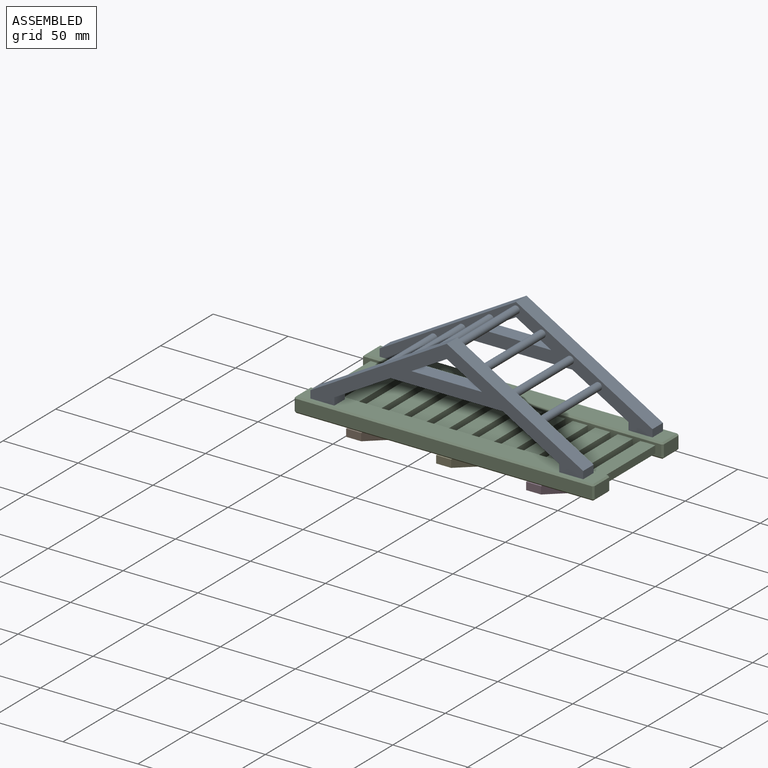
[diagram: assembled view]
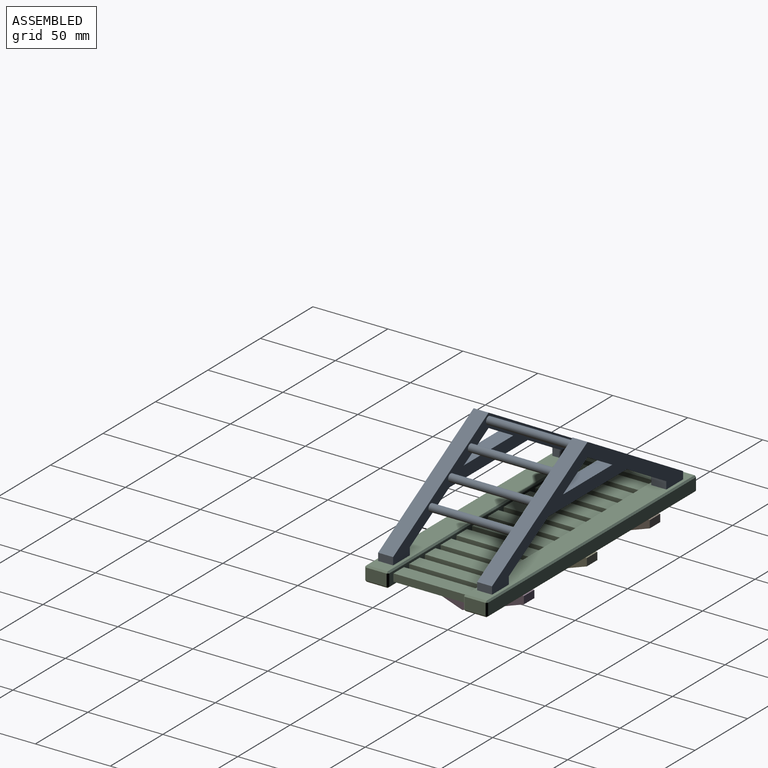
[diagram: assembled view, second angle]
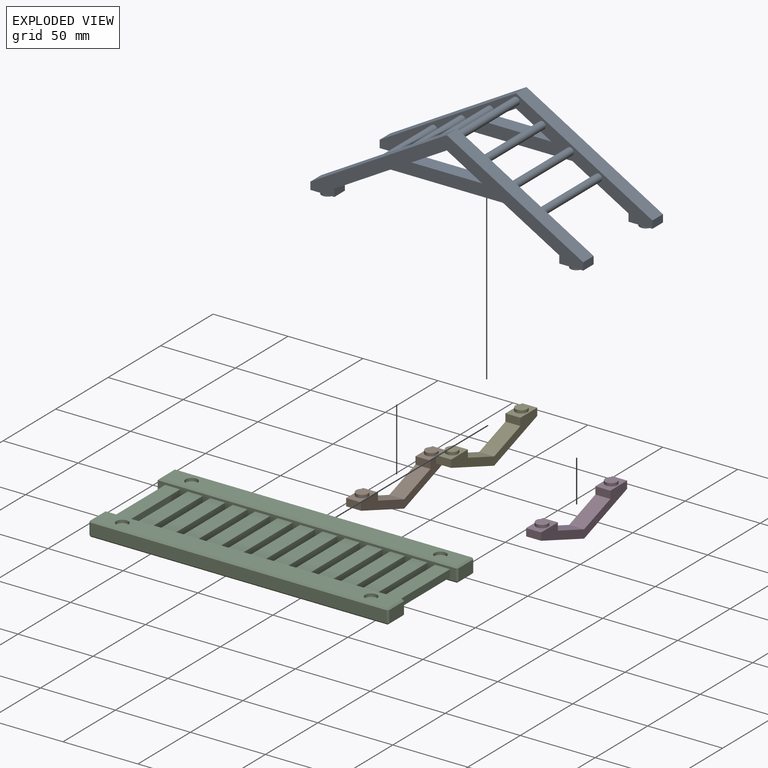
[diagram: exploded view]
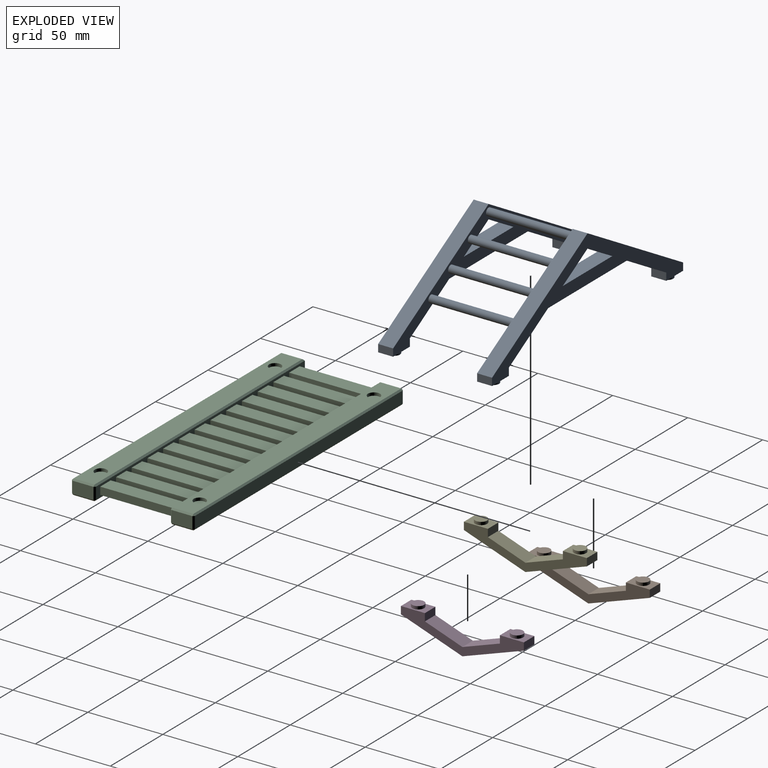
[diagram: exploded view, second angle]
ASSEMBLY  parts=5 mates=4
PART A: 47 faces, bbox 182x59.3x76 mm
  f0: plane 37.5x21.57mm, normal (0.5,-0.87,0), area 432.6mm2, adj f1,f13,f14,f15
  f1: plane 75x10mm, normal (0,-1,0), area 750mm2, adj f0,f2,f14,f15
  f2: plane 37.5x21.57mm, normal (-0.5,-0.87,0), area 432.6mm2, adj f1,f3,f14,f15
  f3: plane 10x5mm, normal (-1,0,0), area 50mm2, adj f2,f4,f14,f15
  f4: plane 16x10mm, normal (0,-1,0), area 109.7mm2, adj f3,f5,f14,f15,f18
  f5: plane 10x5mm, normal (1,0,0), area 50mm2, adj f4,f6,f14,f15
  f6: plane 91x52.34mm, normal (0.5,0.87,0), area 1049.8mm2, adj f5,f7,f14,f15
  f7: plane 91x52.34mm, normal (-0.5,0.87,0), area 1049.8mm2, adj f6,f8,f14,f15
  f8: plane 10x5mm, normal (-1,0,0), area 50mm2, adj f7,f9,f14,f15
  f9: plane 16x10mm, normal (0,-1,0), area 109.7mm2, adj f8,f13,f14,f15,f16
  f10: plane 47.18x10mm, normal (0,1,0), area 471.8mm2, adj f11,f12,f14,f15
  f11: plane 23.59x13.57mm, normal (0.5,-0.87,0), area 272.2mm2, adj f10,f12,f14,f15
  f12: plane 23.59x13.57mm, normal (-0.5,-0.87,0), area 272.2mm2, adj f10,f11,f14,f15
  f13: plane 10x5mm, normal (1,0,0), area 50mm2, adj f0,f9,f14,f15
  f14: plane 182x57.34mm, normal (0,0,1), area 2039mm2, adj f0,f1,f2,f3,f4,f5,f6,f7
  f15: plane 182x57.34mm, normal (0,0,-1), area 2176.4mm2, adj f0,f1,f2,f3,f4,f5,f6,f7
  f16: cylinder r=4mm len=8mm, axis (0,1,0), area 50.3mm2, adj f9,f17
  f17: plane 8x8mm, normal (0,-1,0), area 50.3mm2, adj f16
  f18: cylinder r=4mm len=8mm, axis (0,1,0), area 50.3mm2, adj f4,f19
  f19: plane 8x8mm, normal (0,-1,0), area 50.3mm2, adj f18
  f20: cylinder r=2.5mm len=56mm, axis (0,0,-1), area 879.6mm2, adj f14,f27
  f21: cylinder r=2.5mm len=56mm, axis (0,0,-1), area 879.6mm2, adj f14,f27
  f22: cylinder r=2.5mm len=56mm, axis (0,0,-1), area 879.6mm2, adj f14,f27
  f23: cylinder r=2.5mm len=56mm, axis (0,0,-1), area 879.6mm2, adj f14,f27
  f24: cylinder r=2.5mm len=56mm, axis (0,0,-1), area 879.6mm2, adj f14,f27
  f25: cylinder r=2.5mm len=56mm, axis (0,0,-1), area 879.6mm2, adj f14,f27
  f26: cylinder r=2.5mm len=56mm, axis (0,0,-1), area 879.6mm2, adj f14,f27
  f27: plane 182x57.34mm, normal (0,0,-1), area 2039mm2, adj f20,f21,f22,f23,f24,f25,f26,f28
  f28: plane 10x5mm, normal (1,0,0), area 50mm2, adj f27,f29,f41,f42
  f29: plane 37.5x21.57mm, normal (0.5,-0.87,0), area 432.6mm2, adj f27,f28,f30,f42
  f30: plane 75x10mm, normal (0,-1,0), area 750mm2, adj f27,f29,f31,f42
  f31: plane 37.5x21.57mm, normal (-0.5,-0.87,0), area 432.6mm2, adj f27,f30,f32,f42
  f32: plane 10x5mm, normal (-1,0,0), area 50mm2, adj f27,f31,f33,f42
  f33: plane 16x10mm, normal (0,-1,0), area 109.7mm2, adj f27,f32,f34,f42,f45
  f34: plane 10x5mm, normal (1,0,0), area 50mm2, adj f27,f33,f35,f42
  f35: plane 91x52.34mm, normal (0.5,0.87,0), area 1049.8mm2, adj f27,f34,f36,f42
  f36: plane 91x52.34mm, normal (-0.5,0.87,0), area 1049.8mm2, adj f27,f35,f37,f42
  f37: plane 10x5mm, normal (-1,0,0), area 50mm2, adj f27,f36,f41,f42
  f38: plane 23.59x13.57mm, normal (-0.5,-0.87,0), area 272.2mm2, adj f27,f39,f40,f42
  f39: plane 47.18x10mm, normal (0,1,0), area 471.8mm2, adj f27,f38,f40,f42
  f40: plane 23.59x13.57mm, normal (0.5,-0.87,0), area 272.2mm2, adj f27,f38,f39,f42
  f41: plane 16x10mm, normal (0,-1,0), area 109.7mm2, adj f27,f28,f37,f42,f43
  f42: plane 182x57.34mm, normal (0,0,1), area 2176.4mm2, adj f28,f29,f30,f31,f32,f33,f34,f35
  f43: cylinder r=4mm len=8mm, axis (0,1,0), area 50.3mm2, adj f41,f44
  f44: plane 8x8mm, normal (0,-1,0), area 50.3mm2, adj f43
  f45: cylinder r=4mm len=8mm, axis (0,1,0), area 50.3mm2, adj f33,f46
  f46: plane 8x8mm, normal (0,-1,0), area 50.3mm2, adj f45
PART B: 16 faces, bbox 82x21.4x10 mm
  f0: plane 10x5mm, normal (1,0,0), area 50mm2, adj f1,f9,f10,f11
  f1: plane 25x10mm, normal (0.33,-0.94,0), area 264.9mm2, adj f0,f2,f10,f11
  f2: plane 25x10mm, normal (-0.33,-0.94,0), area 264.9mm2, adj f1,f3,f10,f11
  f3: plane 10x5mm, normal (-1,0,0), area 50mm2, adj f2,f4,f10,f11
  f4: plane 16x10mm, normal (0,-1,0), area 109.7mm2, adj f3,f5,f10,f11,f14
  f5: plane 10x5mm, normal (1,0,0), area 50mm2, adj f4,f6,f10,f11
  f6: plane 41x14.36mm, normal (0.33,0.94,0), area 434.4mm2, adj f5,f7,f10,f11
  f7: plane 41x14.36mm, normal (-0.33,0.94,0), area 434.4mm2, adj f6,f8,f10,f11
  f8: plane 10x5mm, normal (-1,0,0), area 50mm2, adj f7,f9,f10,f11
  f9: plane 16x10mm, normal (0,-1,0), area 109.7mm2, adj f0,f8,f10,f11,f12
  f10: plane 82x19.36mm, normal (0,0,1), area 529.9mm2, adj f0,f1,f2,f3,f4,f5,f6,f7
  f11: plane 82x19.36mm, normal (0,0,-1), area 529.9mm2, adj f0,f1,f2,f3,f4,f5,f6,f7
  f12: cylinder r=4mm len=8mm, axis (0,1,0), area 50.3mm2, adj f9,f13
  f13: plane 8x8mm, normal (0,-1,0), area 50.3mm2, adj f12
  f14: cylinder r=4mm len=8mm, axis (0,1,0), area 50.3mm2, adj f4,f15
  f15: plane 8x8mm, normal (0,-1,0), area 50.3mm2, adj f14
PART C: 124 faces, bbox 200x82x10 mm
  f0: plane 198x14mm, normal (0,0,1), area 2671.5mm2, adj f106,f107,f111,f112,f120,f122
  f1: plane 198x14mm, normal (0,0,1), area 2671.5mm2, adj f79,f80,f83,f84,f116,f118
  f2: plane 198x14mm, normal (0,0,-1), area 2536.4mm2, adj f97,f98,f100,f101,f113,f114,f115
  f3: plane 198x14mm, normal (0,0,-1), area 2536.4mm2, adj f76,f77,f78,f86,f92,f93,f95
  f4: plane 199x8mm, normal (0,1,0), area 942mm2, adj f5,f8,f9,f10,f11,f12,f13,f14
  f5: plane 15x8mm, normal (-1,0,0), area 120mm2, adj f4,f101,f108,f112
  f6: plane 198x8mm, normal (0,-1,0), area 1584mm2, adj f99,f100,f107,f108
  f7: plane 14x8mm, normal (1,0,0), area 112mm2, adj f98,f99,f105,f106
  f8: plane 50x10mm, normal (0,0,-1), area 500mm2, adj f4,f9,f11,f60
  f9: plane 50x5mm, normal (-1,0,0), area 250mm2, adj f4,f8,f10,f60
  f10: plane 50x10mm, normal (0,0,1), area 500mm2, adj f4,f9,f11,f60
  f11: plane 50x5mm, normal (1,0,0), area 250mm2, adj f4,f8,f10,f60
  f12: plane 50x5mm, normal (-1,0,0), area 250mm2, adj f4,f13,f15,f60
  f13: plane 50x10mm, normal (0,0,1), area 500mm2, adj f4,f12,f14,f60
  f14: plane 50x5mm, normal (1,0,0), area 250mm2, adj f4,f13,f15,f60
  f15: plane 50x10mm, normal (0,0,-1), area 500mm2, adj f4,f12,f14,f60
  f16: plane 50x5mm, normal (-1,0,0), area 250mm2, adj f4,f17,f19,f60
  f17: plane 50x10mm, normal (0,0,1), area 500mm2, adj f4,f16,f18,f60
  f18: plane 50x5mm, normal (1,0,0), area 250mm2, adj f4,f17,f19,f60
  f19: plane 50x10mm, normal (0,0,-1), area 500mm2, adj f4,f16,f18,f60
  f20: plane 50x5mm, normal (-1,0,0), area 250mm2, adj f4,f21,f23,f60
  f21: plane 50x10mm, normal (0,0,1), area 500mm2, adj f4,f20,f22,f60
  f22: plane 50x5mm, normal (1,0,0), area 250mm2, adj f4,f21,f23,f60
  f23: plane 50x10mm, normal (0,0,-1), area 500mm2, adj f4,f20,f22,f60
  f24: plane 50x5mm, normal (-1,0,0), area 250mm2, adj f4,f25,f27,f60
  f25: plane 50x10mm, normal (0,0,1), area 500mm2, adj f4,f24,f26,f60
  f26: plane 50x5mm, normal (1,0,0), area 250mm2, adj f4,f25,f27,f60
  f27: plane 50x10mm, normal (0,0,-1), area 500mm2, adj f4,f24,f26,f60
  f28: plane 50x5mm, normal (-1,0,0), area 250mm2, adj f4,f29,f31,f60
  f29: plane 50x10mm, normal (0,0,1), area 500mm2, adj f4,f28,f30,f60
  f30: plane 50x5mm, normal (1,0,0), area 250mm2, adj f4,f29,f31,f60
  f31: plane 50x10mm, normal (0,0,-1), area 500mm2, adj f4,f28,f30,f60
  f32: plane 50x5mm, normal (-1,0,0), area 250mm2, adj f4,f33,f35,f60
  f33: plane 50x10mm, normal (0,0,1), area 500mm2, adj f4,f32,f34,f60
  f34: plane 50x5mm, normal (1,0,0), area 250mm2, adj f4,f33,f35,f60
  f35: plane 50x10mm, normal (0,0,-1), area 500mm2, adj f4,f32,f34,f60
  f36: plane 50x5mm, normal (-1,0,0), area 250mm2, adj f4,f37,f39,f60
  f37: plane 50x10mm, normal (0,0,1), area 500mm2, adj f4,f36,f38,f60
  f38: plane 50x5mm, normal (1,0,0), area 250mm2, adj f4,f37,f39,f60
  f39: plane 50x10mm, normal (0,0,-1), area 500mm2, adj f4,f36,f38,f60
  f40: plane 50x5mm, normal (-1,0,0), area 250mm2, adj f4,f41,f43,f60
  f41: plane 50x10mm, normal (0,0,1), area 500mm2, adj f4,f40,f42,f60
  f42: plane 50x5mm, normal (1,0,0), area 250mm2, adj f4,f41,f43,f60
  f43: plane 50x10mm, normal (0,0,-1), area 500mm2, adj f4,f40,f42,f60
  f44: plane 50x5mm, normal (-1,0,0), area 250mm2, adj f4,f45,f47,f60
  f45: plane 50x10mm, normal (0,0,1), area 500mm2, adj f4,f44,f46,f60
  f46: plane 50x5mm, normal (1,0,0), area 250mm2, adj f4,f45,f47,f60
  f47: plane 50x10mm, normal (0,0,-1), area 500mm2, adj f4,f44,f46,f60
  f48: plane 50x5mm, normal (-1,0,0), area 250mm2, adj f4,f49,f51,f60
  f49: plane 50x10mm, normal (0,0,1), area 500mm2, adj f4,f48,f50,f60
  f50: plane 50x5mm, normal (1,0,0), area 250mm2, adj f4,f49,f51,f60
  f51: plane 50x10mm, normal (0,0,-1), area 500mm2, adj f4,f48,f50,f60
  f52: plane 50x5mm, normal (-1,0,0), area 250mm2, adj f4,f53,f55,f60
  f53: plane 50x10mm, normal (0,0,1), area 500mm2, adj f4,f52,f54,f60
  f54: plane 50x5mm, normal (1,0,0), area 250mm2, adj f4,f53,f55,f60
  f55: plane 50x10mm, normal (0,0,-1), area 500mm2, adj f4,f52,f54,f60
  f56: plane 50x5mm, normal (-1,0,0), area 250mm2, adj f4,f57,f59,f60
  f57: plane 50x10mm, normal (0,0,1), area 500mm2, adj f4,f56,f58,f60
  f58: plane 50x5mm, normal (1,0,0), area 250mm2, adj f4,f57,f59,f60
  f59: plane 50x10mm, normal (0,0,-1), area 500mm2, adj f4,f56,f58,f60
  f60: plane 199x8mm, normal (0,-1,0), area 942mm2, adj f8,f9,f10,f11,f12,f13,f14,f15
  f61: plane 14x8mm, normal (1,0,0), area 112mm2, adj f84,f85,f91,f92
  f62: plane 15x8mm, normal (-1,0,0), area 120mm2, adj f60,f80,f87,f93
  f63: plane 198x8mm, normal (0,1,0), area 1584mm2, adj f79,f85,f86,f87
  f64: cylinder r=4mm len=8mm, axis (0,0,-1), area 25.1mm2, adj f65,f76
  f65: plane 8x8mm, normal (0,0,-1), area 50.3mm2, adj f64
  f66: cylinder r=4mm len=8mm, axis (0,0,-1), area 25.1mm2, adj f67,f78
  f67: plane 8x8mm, normal (0,0,-1), area 50.3mm2, adj f66
  f68: cylinder r=4mm len=8mm, axis (0,0,-1), area 25.1mm2, adj f69,f77
  f69: plane 8x8mm, normal (0,0,-1), area 50.3mm2, adj f68
  f70: cylinder r=4mm len=8mm, axis (0,0,-1), area 25.1mm2, adj f71,f115
  f71: plane 8x8mm, normal (0,0,-1), area 50.3mm2, adj f70
  f72: cylinder r=4mm len=8mm, axis (0,0,-1), area 25.1mm2, adj f73,f113
  f73: plane 8x8mm, normal (0,0,-1), area 50.3mm2, adj f72
  f74: cylinder r=4mm len=8mm, axis (0,0,-1), area 25.1mm2, adj f75,f114
  f75: plane 8x8mm, normal (0,0,-1), area 50.3mm2, adj f74
  f76: cone r=5mm half-angle=45deg, axis (0,0,-1), area 40mm2, adj f3,f64
  f77: cone r=5mm half-angle=45deg, axis (0,0,-1), area 40mm2, adj f3,f68
  f78: cone r=4mm half-angle=45deg, axis (0,0,-1), area 40mm2, adj f3,f66
  f79: plane 198x1mm, normal (0,0.71,0.71), area 280mm2, adj f1,f63,f81,f82
  f80: plane 15x1mm, normal (-0.71,0,0.71), area 20.5mm2, adj f1,f62,f82,f83
  f81: plane 1x1mm, normal (0.58,0.58,0.58), area 0.9mm2, adj f79,f84,f85
  f82: plane 1x1mm, normal (-0.58,0.58,0.58), area 0.9mm2, adj f79,f80,f87
  f83: plane 199x1mm, normal (0,-0.71,0.71), area 280.7mm2, adj f1,f60,f80,f88
  f84: plane 14x1mm, normal (0.71,0,0.71), area 19.8mm2, adj f1,f61,f81,f88
  f85: plane 8x1mm, normal (0.71,0.71,0), area 11.3mm2, adj f61,f63,f81,f89
  f86: plane 198x1mm, normal (0,0.71,-0.71), area 280mm2, adj f3,f63,f89,f90
  f87: plane 8x1mm, normal (-0.71,0.71,0), area 11.3mm2, adj f62,f63,f82,f90
  f88: plane 1x1mm, normal (0.58,-0.58,0.58), area 0.9mm2, adj f83,f84,f91
  f89: plane 1x1mm, normal (0.58,0.58,-0.58), area 0.9mm2, adj f85,f86,f92
  f90: plane 1x1mm, normal (-0.58,0.58,-0.58), area 0.9mm2, adj f86,f87,f93
  f91: plane 8x1mm, normal (0.71,-0.71,0), area 11.3mm2, adj f60,f61,f88,f94
  f92: plane 14x1mm, normal (0.71,0,-0.71), area 19.8mm2, adj f3,f61,f89,f94
  f93: plane 15x1mm, normal (-0.71,0,-0.71), area 20.5mm2, adj f3,f62,f90,f95
  f94: plane 1x1mm, normal (0.58,-0.58,-0.58), area 0.9mm2, adj f91,f92,f95
  f95: plane 199x1mm, normal (0,-0.71,-0.71), area 280.7mm2, adj f3,f60,f93,f94
  f96: plane 1x1mm, normal (0.58,-0.58,-0.58), area 0.9mm2, adj f98,f99,f100
  f97: plane 199x1mm, normal (0,0.71,-0.71), area 280.7mm2, adj f2,f4,f101,f102
  f98: plane 14x1mm, normal (0.71,0,-0.71), area 19.8mm2, adj f2,f7,f96,f102
  f99: plane 8x1mm, normal (0.71,-0.71,0), area 11.3mm2, adj f6,f7,f96,f103
  f100: plane 198x1mm, normal (0,-0.71,-0.71), area 280mm2, adj f2,f6,f96,f104
  f101: plane 15x1mm, normal (-0.71,0,-0.71), area 20.5mm2, adj f2,f5,f97,f104
  f102: plane 1x1mm, normal (0.58,0.58,-0.58), area 0.9mm2, adj f97,f98,f105
  f103: plane 1x1mm, normal (0.58,-0.58,0.58), area 0.9mm2, adj f99,f106,f107
  f104: plane 1x1mm, normal (-0.58,-0.58,-0.58), area 0.9mm2, adj f100,f101,f108
  f105: plane 8x1mm, normal (0.71,0.71,0), area 11.3mm2, adj f4,f7,f102,f109
  f106: plane 14x1mm, normal (0.71,0,0.71), area 19.8mm2, adj f0,f7,f103,f109
  f107: plane 198x1mm, normal (0,-0.71,0.71), area 280mm2, adj f0,f6,f103,f110
  f108: plane 8x1mm, normal (-0.71,-0.71,0), area 11.3mm2, adj f5,f6,f104,f110
  f109: plane 1x1mm, normal (0.58,0.58,0.58), area 0.9mm2, adj f105,f106,f111
  f110: plane 1x1mm, normal (-0.58,-0.58,0.58), area 0.9mm2, adj f107,f108,f112
  f111: plane 199x1mm, normal (0,0.71,0.71), area 280.7mm2, adj f0,f4,f109,f112
  f112: plane 15x1mm, normal (-0.71,0,0.71), area 20.5mm2, adj f0,f5,f110,f111
  f113: cone r=4mm half-angle=45deg, axis (0,0,-1), area 40mm2, adj f2,f72
  f114: cone r=4mm half-angle=45deg, axis (0,0,-1), area 40mm2, adj f2,f74
  f115: cone r=5mm half-angle=45deg, axis (0,0,-1), area 40mm2, adj f2,f70
  f116: cylinder r=4mm len=8mm, axis (0,0,1), area 50.3mm2, adj f1,f117
  f117: plane 8x8mm, normal (0,0,1), area 50.3mm2, adj f116
  f118: cylinder r=4mm len=8mm, axis (0,0,1), area 50.3mm2, adj f1,f119
  f119: plane 8x8mm, normal (0,0,1), area 50.3mm2, adj f118
  f120: cylinder r=4mm len=8mm, axis (0,0,1), area 50.3mm2, adj f0,f121
  f121: plane 8x8mm, normal (0,0,1), area 50.3mm2, adj f120
  f122: cylinder r=4mm len=8mm, axis (0,0,1), area 50.3mm2, adj f0,f123
  f123: plane 8x8mm, normal (0,0,1), area 50.3mm2, adj f122
PART D: same geometry as B
PART E: same geometry as B
PLACE A rot(axis=(1,0,0),90deg) t=(-10.85,30.74,34.14)mm
PLACE B rot(axis=(-0.58,-0.58,0.58),120deg) t=(-70.85,-2.26,12.24)mm
PLACE C t=(-10.85,-13.26,1)mm
PLACE D rot(axis=(-0.58,-0.58,0.58),120deg) t=(49.15,-2.26,12.24)mm
PLACE E rot(axis=(-0.58,-0.58,0.58),120deg) t=(-10.85,-2.26,12.24)mm
MATE fastened A.f16 <-> C.f118  axis (0,0,-1) through (-93.85,30.74,9)mm
MATE fastened B.f12 <-> C.f70  axis (0,0,1) through (-70.85,-35.26,3)mm
MATE fastened D.f12 <-> C.f74  axis (0,0,1) through (49.15,-35.26,3)mm
MATE fastened E.f12 <-> C.f72  axis (0,0,1) through (-10.85,-35.26,3)mm
